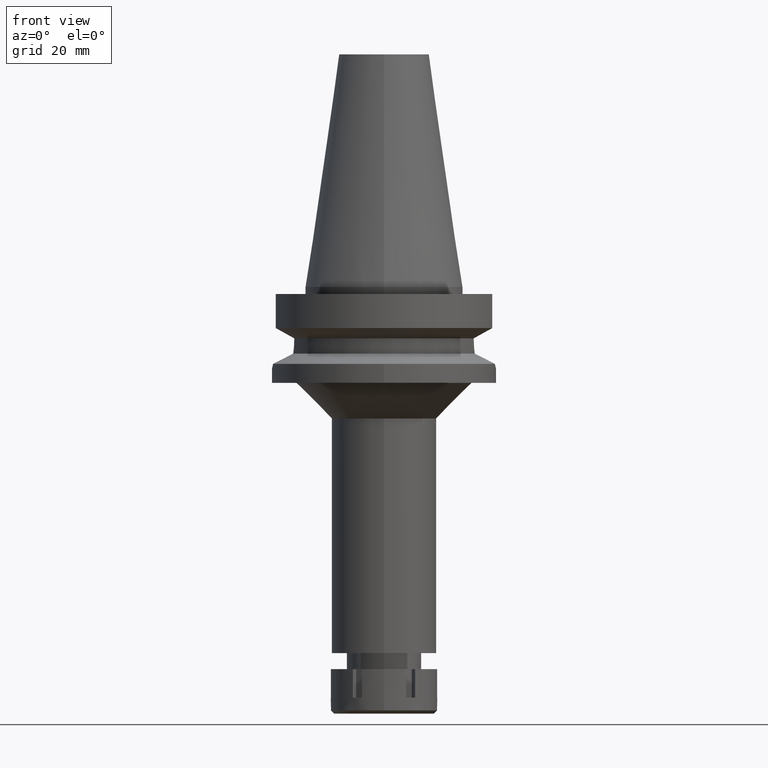
[diagram: clean part render]
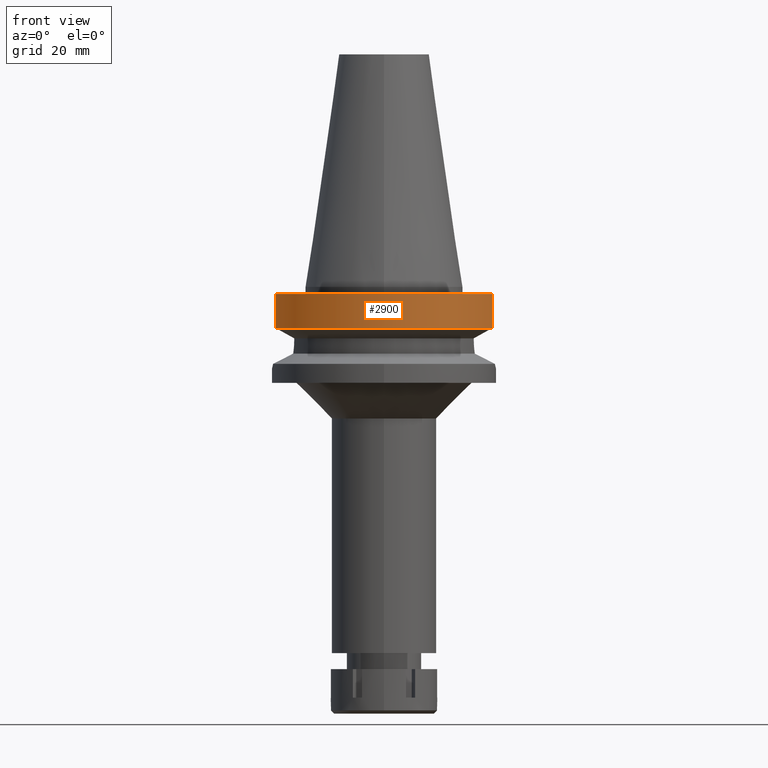
[diagram: same view with one face highlighted and labeled with its STEP entity id]
A machine part, front view. The second image highlights one B-rep face of the part: STEP entity #2900.
In plain terms, the highlighted cylindrical surface (partial cylindrical patch) has radius 31.5 mm, axis along (0, 0, -1).
Its self-contained STEP definition (entity closure, byte-faithful):
#1 = VERTEX_POINT ( 'NONE', #2371 ) ;
#29 = ORIENTED_EDGE ( 'NONE', *, *, #237, .T. ) ;
#133 = DIRECTION ( 'NONE',  ( 0.0000000000000000000, -1.000000000000000000, 0.0000000000000000000 ) ) ;
#178 = CARTESIAN_POINT ( 'NONE',  ( 30.45402272279000044, -8.050000000000000711, -2.000000000000000000 ) ) ;
#209 = DIRECTION ( 'NONE',  ( -1.145239730704999369E-07, -4.332560166812997846E-07, -0.9999999999998996358 ) ) ;
#237 = EDGE_CURVE ( 'NONE', #2275, #1, #938, .T. ) ;
#291 = DIRECTION ( 'NONE',  ( 0.0000000000000000000, 0.0000000000000000000, 1.000000000000000000 ) ) ;
#330 = EDGE_CURVE ( 'NONE', #1989, #1, #3262, .T. ) ;
#557 = EDGE_CURVE ( 'NONE', #2275, #2916, #793, .T. ) ;
#666 = ORIENTED_EDGE ( 'NONE', *, *, #557, .F. ) ;
#722 = AXIS2_PLACEMENT_3D ( 'NONE', #892, #291, #2047 ) ;
#745 = DIRECTION ( 'NONE',  ( 0.0000000000000000000, 0.0000000000000000000, -1.000000000000000000 ) ) ;
#759 = CARTESIAN_POINT ( 'NONE',  ( -30.45402291362999847, -8.049999278019001281, -11.56551215540000044 ) ) ;
#793 = LINE ( 'NONE', #178, #1587 ) ;
#892 = CARTESIAN_POINT ( 'NONE',  ( 0.0000000000000000000, 1.065333950388000029E-14, -11.56550565266999975 ) ) ;
#938 = CIRCLE ( 'NONE', #2880, 31.50000000000000000 ) ;
#954 = DIRECTION ( 'NONE',  ( 1.995111585716988821E-08, -7.547749523998957077E-08, 0.9999999999999968914 ) ) ;
#1008 = CARTESIAN_POINT ( 'NONE',  ( 30.45402272279000044, -8.049999999999000622, -11.56550565266999975 ) ) ;
#1315 = FACE_OUTER_BOUND ( 'NONE', #3398, .T. ) ;
#1587 = VECTOR ( 'NONE', #209, 1000.000000000000000 ) ;
#1598 = EDGE_CURVE ( 'NONE', #1989, #2916, #3426, .T. ) ;
#1833 = CARTESIAN_POINT ( 'NONE',  ( 0.0000000000000000000, 2.134804300274000180E-14, 74.31999999999999318 ) ) ;
#1989 = VERTEX_POINT ( 'NONE', #759 ) ;
#2047 = DIRECTION ( 'NONE',  ( 0.0000000000000000000, -1.000000000000000000, 0.0000000000000000000 ) ) ;
#2089 = CARTESIAN_POINT ( 'NONE',  ( 30.45402272279000044, -8.050000000000000711, -2.000000000000000000 ) ) ;
#2120 = CARTESIAN_POINT ( 'NONE',  ( -30.45402291362999847, -8.049999278019001281, -11.56551215540000044 ) ) ;
#2125 = AXIS2_PLACEMENT_3D ( 'NONE', #1833, #745, #133 ) ;
#2275 = VERTEX_POINT ( 'NONE', #2089 ) ;
#2371 = CARTESIAN_POINT ( 'NONE',  ( -30.45402272279000044, -8.050000000000000711, -2.000000000000000000 ) ) ;
#2378 = CARTESIAN_POINT ( 'NONE',  ( 0.0000000000000000000, 2.134804300274000180E-14, -2.000000000000000000 ) ) ;
#2880 = AXIS2_PLACEMENT_3D ( 'NONE', #2378, #2963, #2927 ) ;
#2900 = ADVANCED_FACE ( 'NONE', ( #1315 ), #2965, .T. ) ;
#2916 = VERTEX_POINT ( 'NONE', #1008 ) ;
#2927 = DIRECTION ( 'NONE',  ( 0.0000000000000000000, -1.000000000000000000, 0.0000000000000000000 ) ) ;
#2963 = DIRECTION ( 'NONE',  ( 0.0000000000000000000, 0.0000000000000000000, -1.000000000000000000 ) ) ;
#2965 = CYLINDRICAL_SURFACE ( 'NONE', #2125, 31.50000000000000000 ) ;
#2990 = VECTOR ( 'NONE', #954, 1000.000000000000227 ) ;
#3098 = ORIENTED_EDGE ( 'NONE', *, *, #330, .F. ) ;
#3262 = LINE ( 'NONE', #2120, #2990 ) ;
#3398 = EDGE_LOOP ( 'NONE', ( #3098, #3456, #666, #29 ) ) ;
#3426 = CIRCLE ( 'NONE', #722, 31.50000000000000000 ) ;
#3456 = ORIENTED_EDGE ( 'NONE', *, *, #1598, .T. ) ;